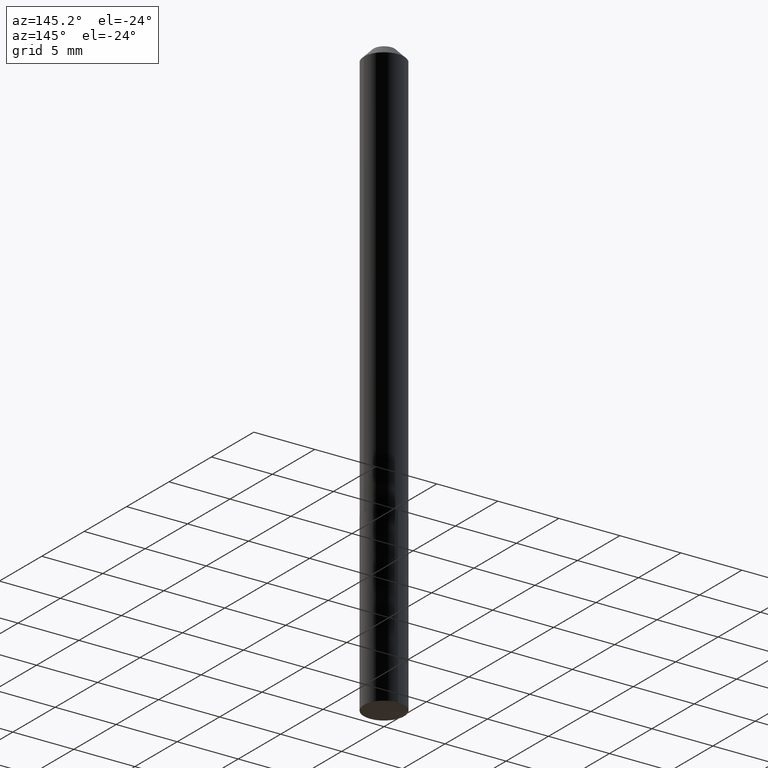
[diagram: clean part render]
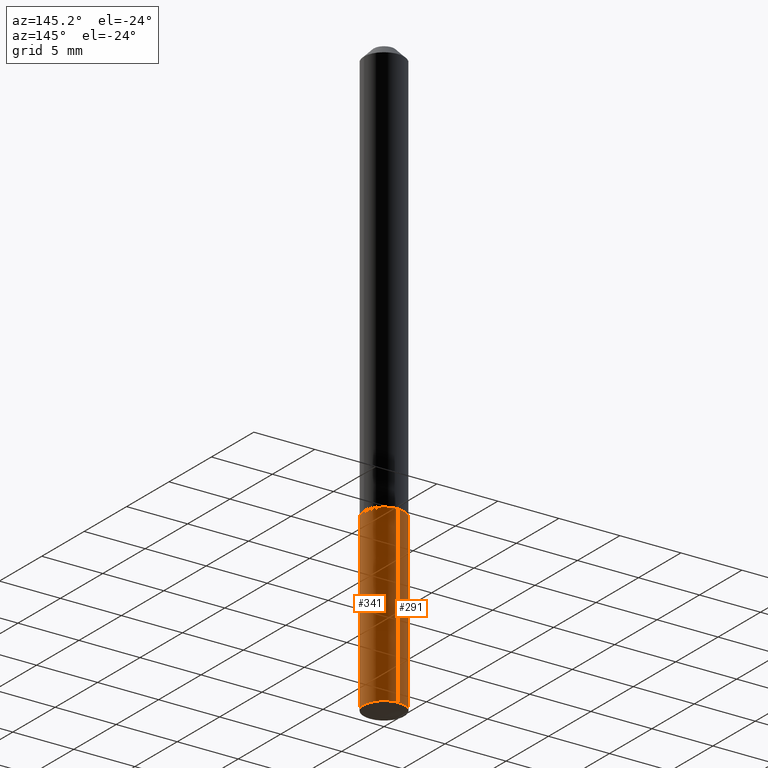
[diagram: same view with one multi-face feature highlighted, each face labeled with its STEP entity id]
A machine part, auxiliary view. The highlighted faces form ONE feature: a constant-radius fillet chain: 2 tangent blend faces with common blend radius 1.6497 mm. The faces share edges in the B-rep.
Their STEP definitions:
[1] entity #341 (Cylinder):
#11 = CIRCLE ( 'NONE', #195, 0.06494999999999999385 ) ;
#23 = VERTEX_POINT ( 'NONE', #101 ) ;
#25 = EDGE_CURVE ( 'NONE', #121, #55, #340, .T. ) ;
#29 = DIRECTION ( 'NONE',  ( -2.445602200539976183E-29, 3.491290310534680378E-15, 1.000000000000000000 ) ) ;
#51 = EDGE_LOOP ( 'NONE', ( #293, #211, #236, #299 ) ) ;
#52 = DIRECTION ( 'NONE',  ( -2.445602200539976183E-29, 3.491290310534680378E-15, 1.000000000000000000 ) ) ;
#55 = VERTEX_POINT ( 'NONE', #215 ) ;
#59 = FACE_OUTER_BOUND ( 'NONE', #51, .T. ) ;
#82 = CARTESIAN_POINT ( 'NONE',  ( 4.675069533769300408E-29, -6.674546110747061798E-15, -1.911696699951598966 ) ) ;
#101 = CARTESIAN_POINT ( 'NONE',  ( -4.535434259156762560E-16, -0.06495000000000668294, -1.911696699951598521 ) ) ;
#108 = VECTOR ( 'NONE', #225, 39.37007874015748143 ) ;
#121 = VERTEX_POINT ( 'NONE', #181 ) ;
#125 = CARTESIAN_POINT ( 'NONE',  ( 4.614975068762179620E-16, 0.06494999999999528928, -1.350300000000000278 ) ) ;
#126 = DIRECTION ( 'NONE',  ( -2.445602200539976183E-29, 3.491290310534680772E-15, 1.000000000000000000 ) ) ;
#169 = DIRECTION ( 'NONE',  ( -6.982962677686266711E-15, -1.000000000000000000, 4.206078512185163024E-15 ) ) ;
#178 = CARTESIAN_POINT ( 'NONE',  ( -4.535434259156899625E-16, -0.06495000000000471230, -1.350299999999999834 ) ) ;
#181 = CARTESIAN_POINT ( 'NONE',  ( 4.614975068762317670E-16, 0.06494999999999333251, -1.911696699951599188 ) ) ;
#195 = AXIS2_PLACEMENT_3D ( 'NONE', #82, #52, #294 ) ;
#207 = CYLINDRICAL_SURFACE ( 'NONE', #218, 0.06494999999999999385 ) ;
#211 = ORIENTED_EDGE ( 'NONE', *, *, #25, .T. ) ;
#215 = CARTESIAN_POINT ( 'NONE',  ( 4.614975068762317670E-16, 0.06494999999999528928, -1.350300000000000278 ) ) ;
#218 = AXIS2_PLACEMENT_3D ( 'NONE', #266, #29, #237 ) ;
#224 = CIRCLE ( 'NONE', #366, 0.06494999999999999385 ) ;
#225 = DIRECTION ( 'NONE',  ( -2.445602200539976183E-29, 3.491290310534680772E-15, 1.000000000000000000 ) ) ;
#227 = CARTESIAN_POINT ( 'NONE',  ( -4.535434259156899625E-16, -0.06495000000000471230, -1.350299999999999834 ) ) ;
#229 = EDGE_CURVE ( 'NONE', #360, #55, #224, .T. ) ;
#236 = ORIENTED_EDGE ( 'NONE', *, *, #229, .F. ) ;
#237 = DIRECTION ( 'NONE',  ( -6.982962677686266711E-15, -1.000000000000000000, 4.206078512185163024E-15 ) ) ;
#257 = DIRECTION ( 'NONE',  ( -2.445602200539976183E-29, 3.491290310534680378E-15, 1.000000000000000000 ) ) ;
#258 = CARTESIAN_POINT ( 'NONE',  ( 3.302116528991790311E-29, -4.714547251839899498E-15, -1.350300000000000056 ) ) ;
#266 = CARTESIAN_POINT ( 'NONE',  ( 3.302116528991790311E-29, -4.714547251839899498E-15, -1.350300000000000056 ) ) ;
#293 = ORIENTED_EDGE ( 'NONE', *, *, #348, .T. ) ;
#294 = DIRECTION ( 'NONE',  ( -6.982962677686266711E-15, -1.000000000000000000, 4.206078512185163024E-15 ) ) ;
#299 = ORIENTED_EDGE ( 'NONE', *, *, #301, .F. ) ;
#301 = EDGE_CURVE ( 'NONE', #23, #360, #321, .T. ) ;
#303 = VECTOR ( 'NONE', #126, 39.37007874015748143 ) ;
#321 = LINE ( 'NONE', #227, #108 ) ;
#340 = LINE ( 'NONE', #125, #303 ) ;
#341 = ADVANCED_FACE ( 'NONE', ( #59 ), #207, .T. ) ;
#348 = EDGE_CURVE ( 'NONE', #23, #121, #11, .T. ) ;
#360 = VERTEX_POINT ( 'NONE', #178 ) ;
#366 = AXIS2_PLACEMENT_3D ( 'NONE', #258, #257, #169 ) ;
[2] entity #291 (Cylinder):
#2 = ORIENTED_EDGE ( 'NONE', *, *, #301, .T. ) ;
#15 = DIRECTION ( 'NONE',  ( -6.982962677686266711E-15, -1.000000000000000000, 4.206078512185163024E-15 ) ) ;
#23 = VERTEX_POINT ( 'NONE', #101 ) ;
#24 = AXIS2_PLACEMENT_3D ( 'NONE', #137, #284, #78 ) ;
#25 = EDGE_CURVE ( 'NONE', #121, #55, #340, .T. ) ;
#35 = DIRECTION ( 'NONE',  ( -2.445602200539976183E-29, 3.491290310534680378E-15, 1.000000000000000000 ) ) ;
#43 = CIRCLE ( 'NONE', #356, 0.06494999999999999385 ) ;
#55 = VERTEX_POINT ( 'NONE', #215 ) ;
#61 = DIRECTION ( 'NONE',  ( -6.982962677686266711E-15, -1.000000000000000000, 4.206078512185163024E-15 ) ) ;
#78 = DIRECTION ( 'NONE',  ( -6.982962677686266711E-15, -1.000000000000000000, 4.206078512185163024E-15 ) ) ;
#101 = CARTESIAN_POINT ( 'NONE',  ( -4.535434259156762560E-16, -0.06495000000000668294, -1.911696699951598521 ) ) ;
#106 = CARTESIAN_POINT ( 'NONE',  ( 3.302116528991790311E-29, -4.714547251839899498E-15, -1.350300000000000056 ) ) ;
#108 = VECTOR ( 'NONE', #225, 39.37007874015748143 ) ;
#115 = EDGE_CURVE ( 'NONE', #121, #23, #259, .T. ) ;
#121 = VERTEX_POINT ( 'NONE', #181 ) ;
#125 = CARTESIAN_POINT ( 'NONE',  ( 4.614975068762179620E-16, 0.06494999999999528928, -1.350300000000000278 ) ) ;
#126 = DIRECTION ( 'NONE',  ( -2.445602200539976183E-29, 3.491290310534680772E-15, 1.000000000000000000 ) ) ;
#137 = CARTESIAN_POINT ( 'NONE',  ( 3.302116528991790311E-29, -4.714547251839899498E-15, -1.350300000000000056 ) ) ;
#145 = ORIENTED_EDGE ( 'NONE', *, *, #115, .T. ) ;
#168 = DIRECTION ( 'NONE',  ( -2.445602200539976183E-29, 3.491290310534680378E-15, 1.000000000000000000 ) ) ;
#178 = CARTESIAN_POINT ( 'NONE',  ( -4.535434259156899625E-16, -0.06495000000000471230, -1.350299999999999834 ) ) ;
#181 = CARTESIAN_POINT ( 'NONE',  ( 4.614975068762317670E-16, 0.06494999999999333251, -1.911696699951599188 ) ) ;
#199 = AXIS2_PLACEMENT_3D ( 'NONE', #312, #35, #61 ) ;
#215 = CARTESIAN_POINT ( 'NONE',  ( 4.614975068762317670E-16, 0.06494999999999528928, -1.350300000000000278 ) ) ;
#223 = FACE_OUTER_BOUND ( 'NONE', #268, .T. ) ;
#225 = DIRECTION ( 'NONE',  ( -2.445602200539976183E-29, 3.491290310534680772E-15, 1.000000000000000000 ) ) ;
#226 = EDGE_CURVE ( 'NONE', #55, #360, #43, .T. ) ;
#227 = CARTESIAN_POINT ( 'NONE',  ( -4.535434259156899625E-16, -0.06495000000000471230, -1.350299999999999834 ) ) ;
#259 = CIRCLE ( 'NONE', #199, 0.06494999999999999385 ) ;
#268 = EDGE_LOOP ( 'NONE', ( #324, #145, #2, #384 ) ) ;
#284 = DIRECTION ( 'NONE',  ( -2.445602200539976183E-29, 3.491290310534680378E-15, 1.000000000000000000 ) ) ;
#291 = ADVANCED_FACE ( 'NONE', ( #223 ), #319, .T. ) ;
#301 = EDGE_CURVE ( 'NONE', #23, #360, #321, .T. ) ;
#303 = VECTOR ( 'NONE', #126, 39.37007874015748143 ) ;
#312 = CARTESIAN_POINT ( 'NONE',  ( 4.675069533769300408E-29, -6.674546110747061798E-15, -1.911696699951598966 ) ) ;
#319 = CYLINDRICAL_SURFACE ( 'NONE', #24, 0.06494999999999999385 ) ;
#321 = LINE ( 'NONE', #227, #108 ) ;
#324 = ORIENTED_EDGE ( 'NONE', *, *, #25, .F. ) ;
#340 = LINE ( 'NONE', #125, #303 ) ;
#356 = AXIS2_PLACEMENT_3D ( 'NONE', #106, #168, #15 ) ;
#360 = VERTEX_POINT ( 'NONE', #178 ) ;
#384 = ORIENTED_EDGE ( 'NONE', *, *, #226, .F. ) ;